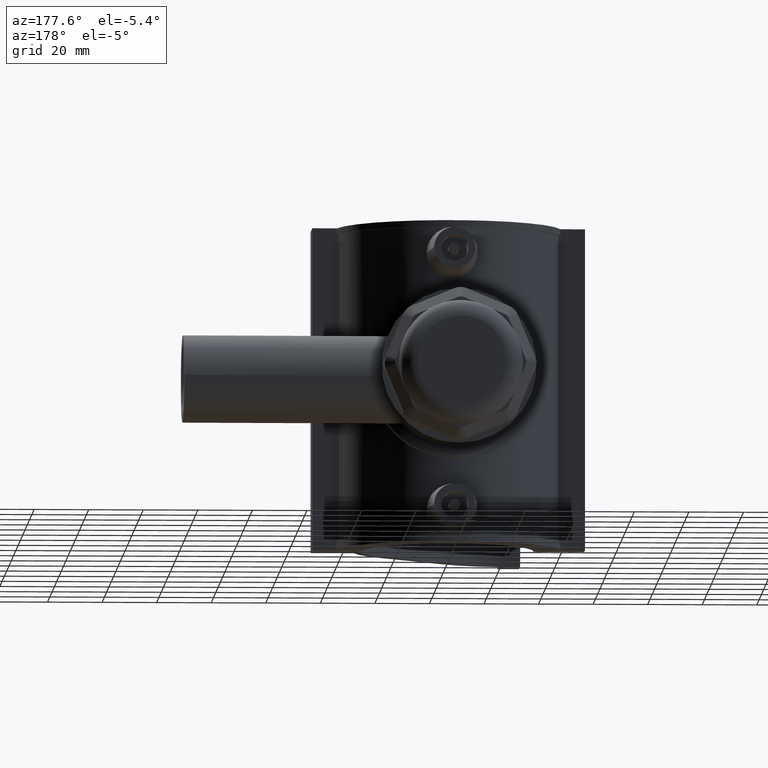
[diagram: clean part render]
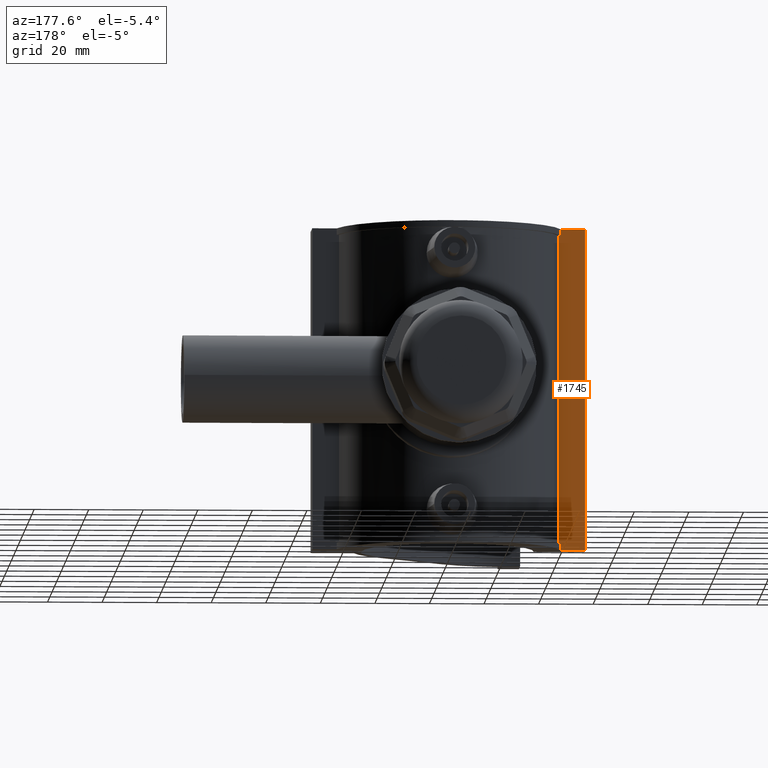
[diagram: same view with one face highlighted and labeled with its STEP entity id]
A machine part, auxiliary view. The second image highlights one B-rep face of the part: STEP entity #1745.
In plain terms, the highlighted planar face has unit normal (0, 1, 0).
Its self-contained STEP definition (entity closure, byte-faithful):
#84=LINE('',#3328,#228);
#87=LINE('',#3336,#231);
#94=LINE('',#3352,#238);
#95=LINE('',#3426,#239);
#96=LINE('',#3428,#240);
#97=LINE('',#3430,#241);
#98=LINE('',#3432,#242);
#99=LINE('',#3433,#243);
#228=VECTOR('',#2242,2.36);
#231=VECTOR('',#2249,0.834263681405449);
#238=VECTOR('',#2262,113.28);
#239=VECTOR('',#2267,8.98008122874936);
#240=VECTOR('',#2268,118.);
#241=VECTOR('',#2269,8.98008122874936);
#242=VECTOR('',#2270,2.36);
#243=VECTOR('',#2271,0.834263681405449);
#462=FACE_OUTER_BOUND('',#584,.T.);
#584=EDGE_LOOP('',(#1411,#1412,#1413,#1414,#1415,#1416,#1417,#1418));
#803=VERTEX_POINT('',#3325);
#804=VERTEX_POINT('',#3327);
#807=VERTEX_POINT('',#3335);
#813=VERTEX_POINT('',#3351);
#816=VERTEX_POINT('',#3425);
#817=VERTEX_POINT('',#3427);
#818=VERTEX_POINT('',#3429);
#819=VERTEX_POINT('',#3431);
#1014=EDGE_CURVE('',#804,#803,#84,.T.);
#1018=EDGE_CURVE('',#807,#804,#87,.T.);
#1026=EDGE_CURVE('',#813,#807,#94,.T.);
#1030=EDGE_CURVE('',#816,#803,#95,.T.);
#1031=EDGE_CURVE('',#816,#817,#96,.T.);
#1032=EDGE_CURVE('',#818,#817,#97,.T.);
#1033=EDGE_CURVE('',#818,#819,#98,.T.);
#1034=EDGE_CURVE('',#819,#813,#99,.T.);
#1411=ORIENTED_EDGE('',*,*,#1018,.T.);
#1412=ORIENTED_EDGE('',*,*,#1014,.T.);
#1413=ORIENTED_EDGE('',*,*,#1030,.F.);
#1414=ORIENTED_EDGE('',*,*,#1031,.T.);
#1415=ORIENTED_EDGE('',*,*,#1032,.F.);
#1416=ORIENTED_EDGE('',*,*,#1033,.T.);
#1417=ORIENTED_EDGE('',*,*,#1034,.T.);
#1418=ORIENTED_EDGE('',*,*,#1026,.T.);
#1652=PLANE('',#1900);
#1745=ADVANCED_FACE('',(#462),#1652,.T.);
#1900=AXIS2_PLACEMENT_3D('',#3424,#2265,#2266);
#2242=DIRECTION('',(0.,0.,-1.));
#2249=DIRECTION('',(-1.,0.,0.));
#2262=DIRECTION('',(0.,0.,-1.));
#2265=DIRECTION('center_axis',(0.,1.,0.));
#2266=DIRECTION('ref_axis',(-1.,0.,0.));
#2267=DIRECTION('',(1.,0.,0.));
#2268=DIRECTION('',(0.,0.,1.));
#2269=DIRECTION('',(-1.,0.,0.));
#2270=DIRECTION('',(0.,0.,-1.));
#2271=DIRECTION('',(1.,0.,0.));
#3325=CARTESIAN_POINT('',(-41.0199187712506,7.875,-59.));
#3327=CARTESIAN_POINT('',(-41.0199187712506,7.875,-56.64));
#3328=CARTESIAN_POINT('',(-41.0199187712506,7.875,-59.));
#3335=CARTESIAN_POINT('',(-40.1856550898452,7.875,-56.64));
#3336=CARTESIAN_POINT('',(-20.0928275449226,7.875,-56.64));
#3351=CARTESIAN_POINT('',(-40.1856550898452,7.875,56.64));
#3352=CARTESIAN_POINT('',(-40.1856550898452,7.875,0.));
#3424=CARTESIAN_POINT('Origin',(-40.1856550898452,7.875,0.));
#3425=CARTESIAN_POINT('',(-50.,7.875,-59.));
#3426=CARTESIAN_POINT('',(-40.1856550898452,7.875,-59.));
#3427=CARTESIAN_POINT('',(-50.,7.875,59.));
#3428=CARTESIAN_POINT('',(-50.,7.875,0.));
#3429=CARTESIAN_POINT('',(-41.0199187712506,7.875,59.));
#3430=CARTESIAN_POINT('',(-40.1856550898452,7.875,59.));
#3431=CARTESIAN_POINT('',(-41.0199187712506,7.875,56.64));
#3432=CARTESIAN_POINT('',(-41.0199187712506,7.875,59.));
#3433=CARTESIAN_POINT('',(-20.0928275449226,7.875,56.64));